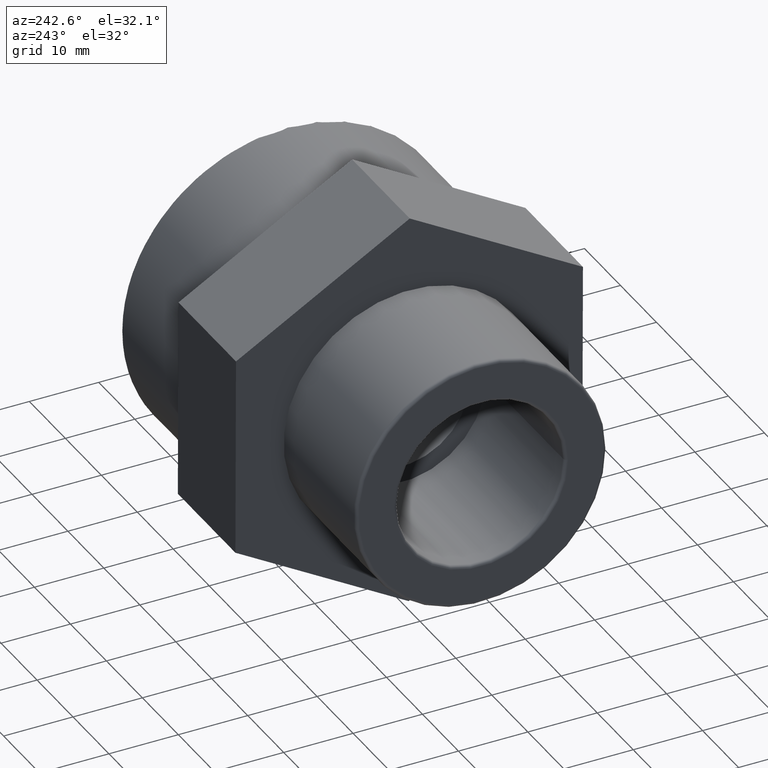
[diagram: clean part render]
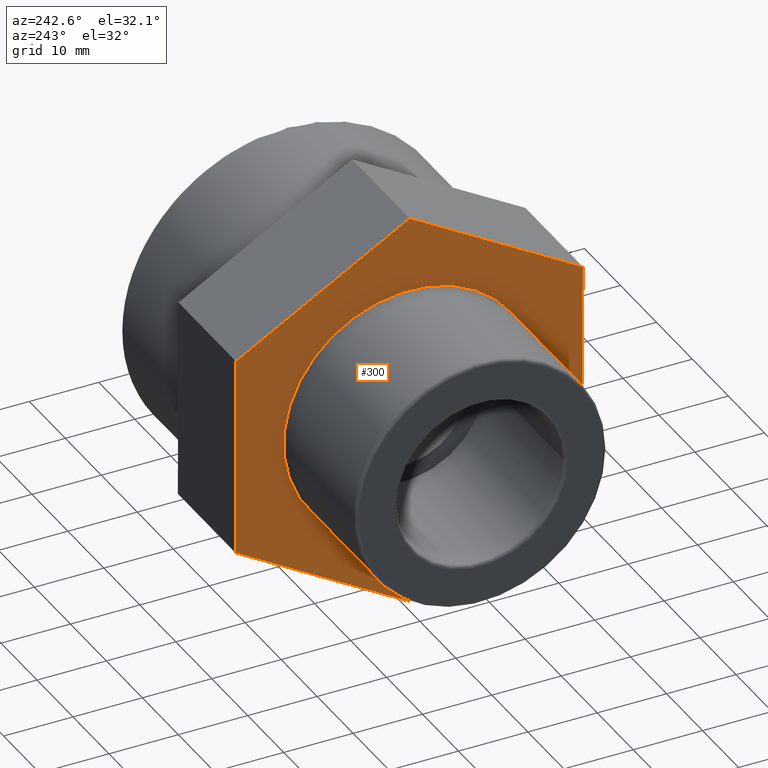
[diagram: same view with one face highlighted and labeled with its STEP entity id]
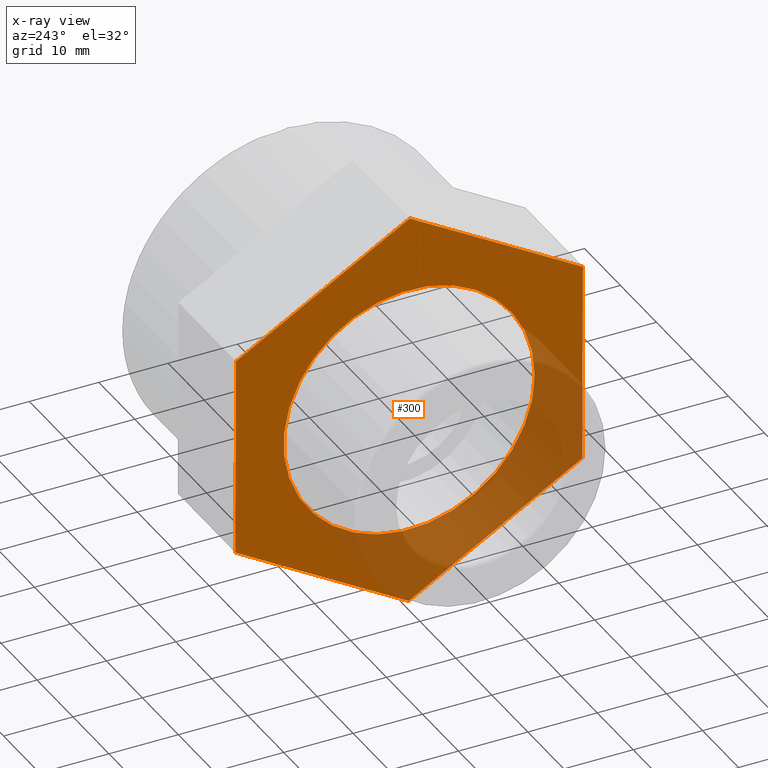
[diagram: x-ray of the same camera — body ghosted, the highlighted face saturated]
A machine part, auxiliary view. The second image highlights one B-rep face of the part: STEP entity #300.
The next image is the same camera in x-ray: the body ghosted, the highlighted face saturated — about 31% of this face is hidden behind the body in this view.
In plain terms, the highlighted planar face has unit normal (-1, -0, 0).
Its self-contained STEP definition (entity closure, byte-faithful):
#15=LINE('',#466,#33);
#19=LINE('',#474,#37);
#22=LINE('',#480,#40);
#25=LINE('',#487,#43);
#29=LINE('',#494,#47);
#31=LINE('',#497,#49);
#33=VECTOR('',#386,28.8675134594813);
#37=VECTOR('',#392,28.8675134594813);
#40=VECTOR('',#397,28.8675134594813);
#43=VECTOR('',#402,28.8675134594813);
#47=VECTOR('',#408,28.8675134594813);
#49=VECTOR('',#412,28.8675134594813);
#67=PLANE('',#337);
#82=FACE_BOUND('',#139,.T.);
#103=FACE_OUTER_BOUND('',#138,.T.);
#138=EDGE_LOOP('',(#269,#270,#271,#272,#273,#274));
#139=EDGE_LOOP('',(#275));
#151=CIRCLE('',#324,18.08775);
#165=VERTEX_POINT('',#461);
#166=VERTEX_POINT('',#464);
#167=VERTEX_POINT('',#465);
#170=VERTEX_POINT('',#473);
#172=VERTEX_POINT('',#479);
#174=VERTEX_POINT('',#485);
#175=VERTEX_POINT('',#486);
#191=EDGE_CURVE('',#165,#165,#151,.T.);
#192=EDGE_CURVE('',#166,#167,#15,.T.);
#196=EDGE_CURVE('',#167,#170,#19,.T.);
#199=EDGE_CURVE('',#170,#172,#22,.T.);
#202=EDGE_CURVE('',#174,#175,#25,.T.);
#206=EDGE_CURVE('',#175,#166,#29,.T.);
#208=EDGE_CURVE('',#172,#174,#31,.T.);
#269=ORIENTED_EDGE('',*,*,#206,.F.);
#270=ORIENTED_EDGE('',*,*,#202,.F.);
#271=ORIENTED_EDGE('',*,*,#208,.F.);
#272=ORIENTED_EDGE('',*,*,#199,.F.);
#273=ORIENTED_EDGE('',*,*,#196,.F.);
#274=ORIENTED_EDGE('',*,*,#192,.F.);
#275=ORIENTED_EDGE('',*,*,#191,.F.);
#300=ADVANCED_FACE('',(#103,#82),#67,.T.);
#324=AXIS2_PLACEMENT_3D('',#462,#382,#383);
#337=AXIS2_PLACEMENT_3D('',#507,#426,#427);
#382=DIRECTION('center_axis',(-1.,-1.83697019872103E-16,0.));
#383=DIRECTION('ref_axis',(0.,0.,1.));
#386=DIRECTION('',(-5.44336326563828E-19,0.00296322894591766,-0.999995609627469));
#392=DIRECTION('',(-1.59357755523959E-16,0.867503216083254,-0.49743157326934));
#397=DIRECTION('',(-1.58813419197395E-16,0.864539987137336,0.50256403635813));
#402=DIRECTION('',(1.59357755523959E-16,-0.867503216083254,0.49743157326934));
#408=DIRECTION('',(1.58813419197395E-16,-0.864539987137336,-0.50256403635813));
#412=DIRECTION('',(5.44336326564054E-19,-0.00296322894591889,0.999995609627469));
#426=DIRECTION('center_axis',(-1.,-1.83697019872103E-16,0.));
#427=DIRECTION('ref_axis',(0.,0.,1.));
#461=CARTESIAN_POINT('',(-6.99999999999999,-18.08775,0.));
#462=CARTESIAN_POINT('Origin',(-7.,3.67394039744206E-15,0.));
#464=CARTESIAN_POINT('',(-6.99999999999999,-25.0426607664266,14.3596126365236));
#465=CARTESIAN_POINT('',(-6.99999999999999,-24.9571197149468,-14.5077740838196));
#466=CARTESIAN_POINT('',(-6.99999999999999,-24.9785049778168,-7.29092740373376));
#473=CARTESIAN_POINT('',(-7.,0.0855410514798294,-28.8673867203432));
#474=CARTESIAN_POINT('',(-7.,-6.17512414012683,-25.2774835612123));
#479=CARTESIAN_POINT('',(-7.,25.0426607664267,-14.3596126365236));
#480=CARTESIAN_POINT('',(-7.,18.80338083769,-17.9865561574785));
#485=CARTESIAN_POINT('',(-7.,24.9571197149468,14.5077740838195));
#486=CARTESIAN_POINT('',(-7.,-0.0855410514798197,28.8673867203432));
#487=CARTESIAN_POINT('',(-7.,6.17512414012685,25.2774835612123));
#494=CARTESIAN_POINT('',(-6.99999999999999,-18.8033808376899,17.9865561574785));
#497=CARTESIAN_POINT('',(-7.,24.9998902406867,0.0740807236479707));
#507=CARTESIAN_POINT('Origin',(-6.99999999999999,-18.08775,0.));